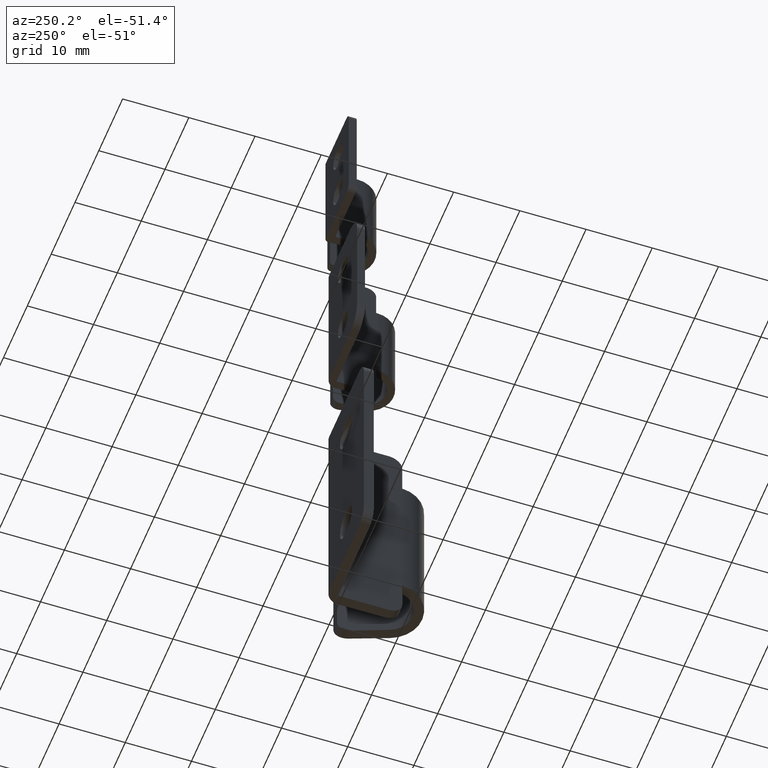
[diagram: clean part render]
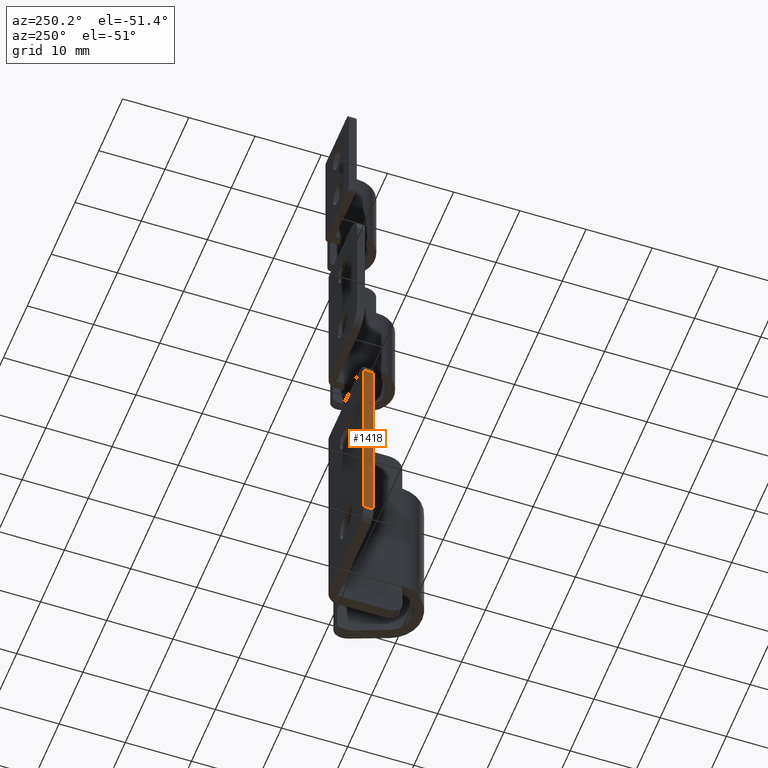
[diagram: same view with one face highlighted and labeled with its STEP entity id]
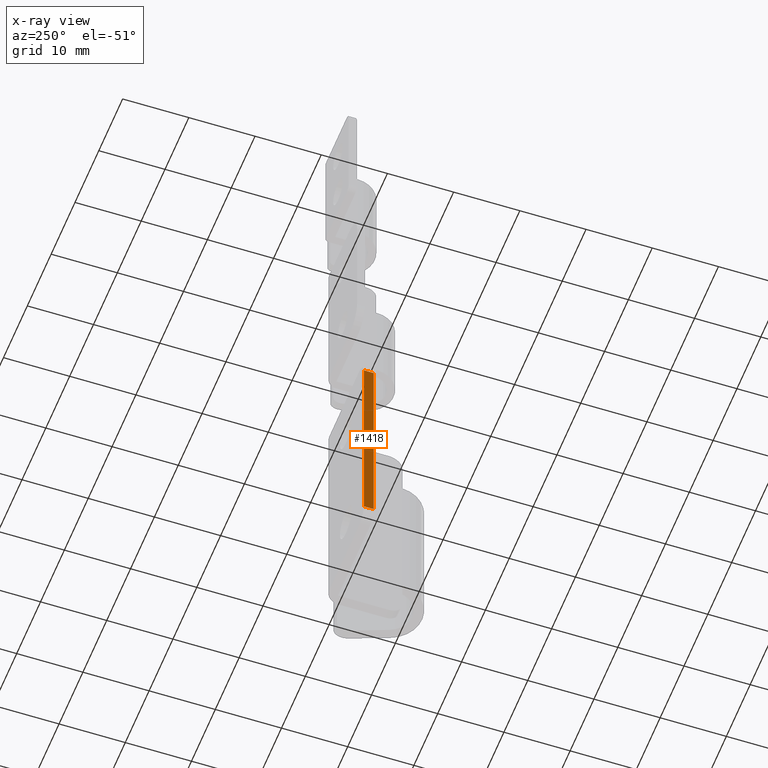
[diagram: x-ray of the same camera — body ghosted, the highlighted face saturated]
A machine part, auxiliary view. The second image highlights one B-rep face of the part: STEP entity #1418.
The next image is the same camera in x-ray: the body ghosted, the highlighted face saturated — about 0% of this face is hidden behind the body in this view.
In plain terms, the highlighted planar face has unit normal (-1, -0, -0).
Its self-contained STEP definition (entity closure, byte-faithful):
#92=PLANE('',#1542);
#156=FACE_OUTER_BOUND('',#243,.T.);
#243=EDGE_LOOP('',(#1198,#1199,#1200,#1201));
#347=LINE('',#2276,#478);
#352=LINE('',#2293,#483);
#353=LINE('',#2296,#484);
#360=LINE('',#2318,#491);
#478=VECTOR('',#1821,31.);
#483=VECTOR('',#1838,1.5);
#484=VECTOR('',#1841,1.5);
#491=VECTOR('',#1870,31.);
#674=VERTEX_POINT('',#2273);
#675=VERTEX_POINT('',#2275);
#681=VERTEX_POINT('',#2291);
#682=VERTEX_POINT('',#2295);
#846=EDGE_CURVE('',#674,#675,#347,.T.);
#855=EDGE_CURVE('',#681,#674,#352,.T.);
#856=EDGE_CURVE('',#675,#682,#353,.T.);
#866=EDGE_CURVE('',#681,#682,#360,.T.);
#1198=ORIENTED_EDGE('',*,*,#855,.F.);
#1199=ORIENTED_EDGE('',*,*,#866,.T.);
#1200=ORIENTED_EDGE('',*,*,#856,.F.);
#1201=ORIENTED_EDGE('',*,*,#846,.F.);
#1418=ADVANCED_FACE('',(#156),#92,.T.);
#1542=AXIS2_PLACEMENT_3D('',#2319,#1871,#1872);
#1821=DIRECTION('',(1.26882631385732E-16,0.,1.));
#1838=DIRECTION('',(0.,1.,0.));
#1841=DIRECTION('',(0.,-1.,0.));
#1870=DIRECTION('',(1.26882631385732E-16,0.,1.));
#1871=DIRECTION('center_axis',(-1.,0.,1.26882631385732E-16));
#1872=DIRECTION('ref_axis',(0.,0.,1.));
#2273=CARTESIAN_POINT('',(-27.5,16.,2.));
#2275=CARTESIAN_POINT('',(-27.5,16.,33.));
#2276=CARTESIAN_POINT('',(-27.5,16.,0.));
#2291=CARTESIAN_POINT('',(-27.5,14.5,2.));
#2293=CARTESIAN_POINT('',(-27.5,0.,2.));
#2295=CARTESIAN_POINT('',(-27.5,14.5,33.));
#2296=CARTESIAN_POINT('',(-27.5,0.,33.));
#2318=CARTESIAN_POINT('',(-27.5,14.5,17.5));
#2319=CARTESIAN_POINT('Origin',(-27.5,0.,0.));